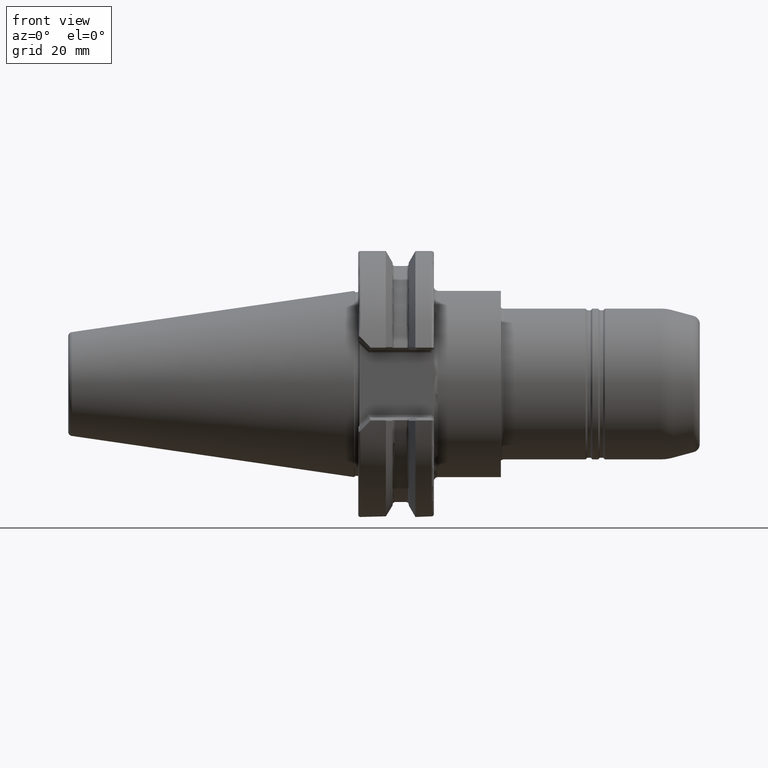
[diagram: clean part render]
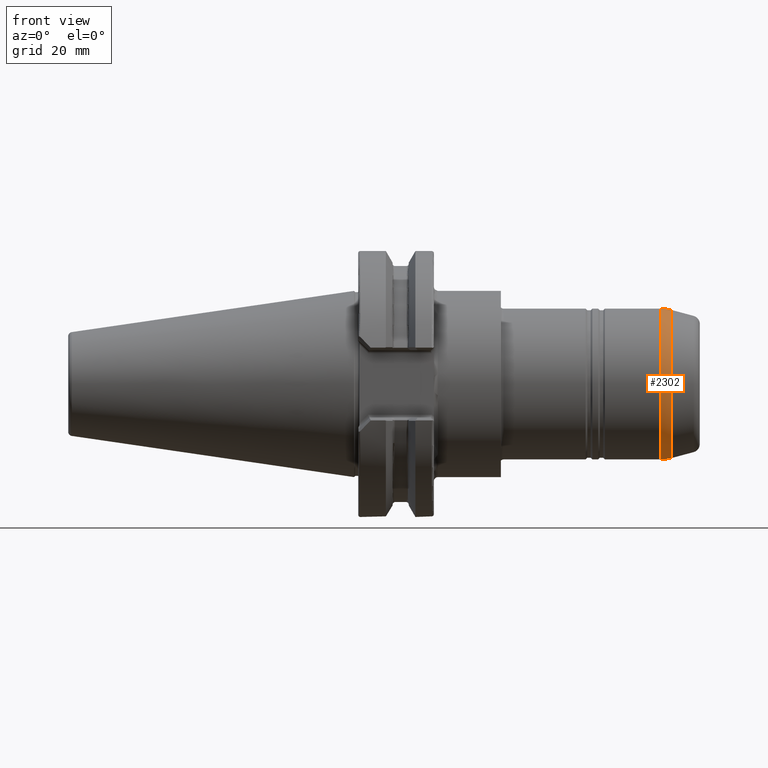
[diagram: same view with one face highlighted and labeled with its STEP entity id]
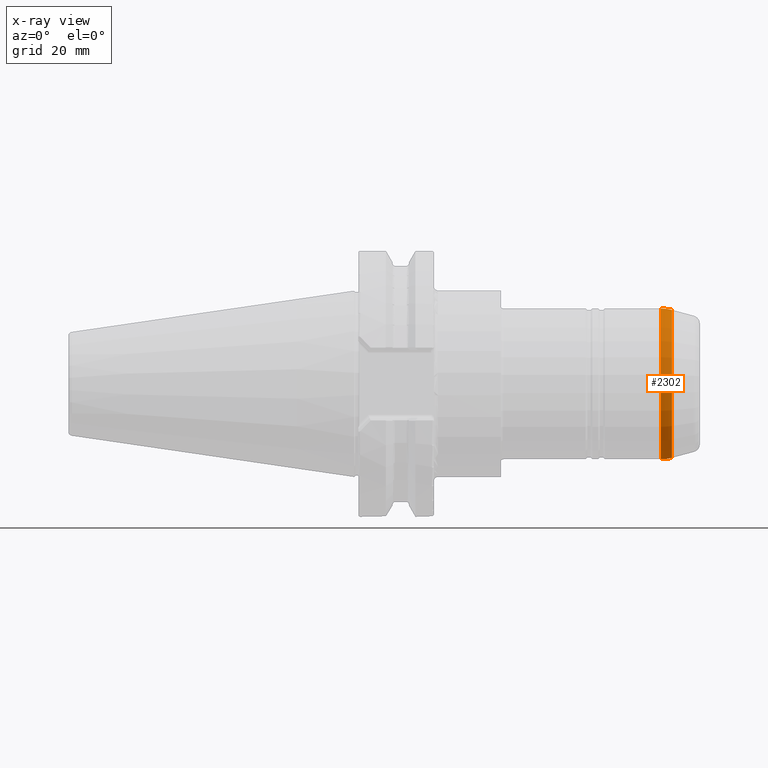
[diagram: x-ray of the same camera — body ghosted, the highlighted face saturated]
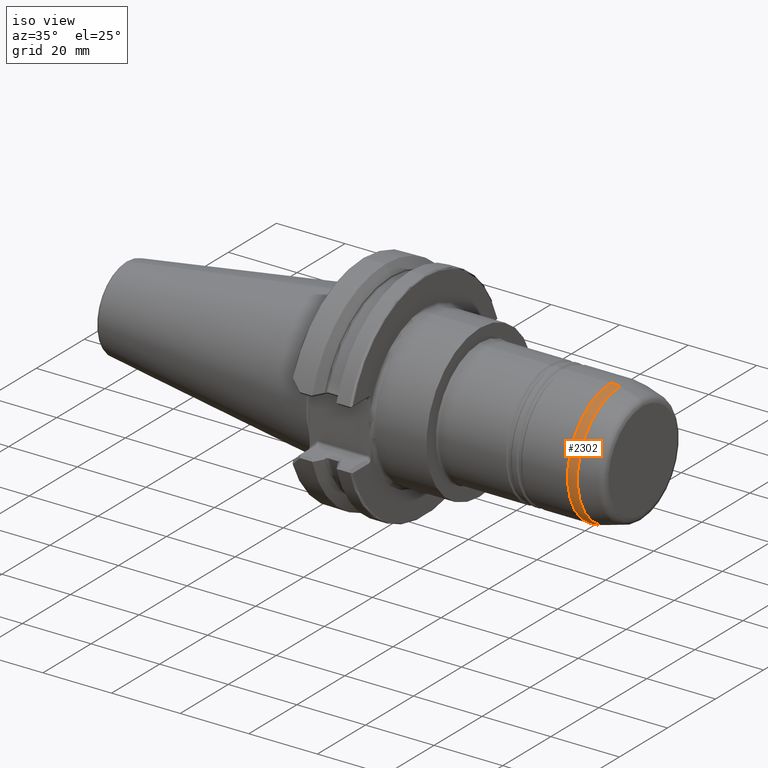
[diagram: same view with one face highlighted and labeled with its STEP entity id]
A machine part, front view. The second image highlights one B-rep face of the part: STEP entity #2302.
The next image is the same camera in x-ray: the body ghosted, the highlighted face saturated — about 0% of this face is hidden behind the body in this view.
A second angle (iso view) of the same face is appended — the face is thin or edge-on in the first view.
In plain terms, the highlighted toroidal blend (fillet) surface has major radius 8 mm and minor (blend) radius 10 mm.
Its self-contained STEP definition (entity closure, byte-faithful):
#95 = DIRECTION ( 'NONE',  ( 0.0000000000000000000, -1.000000000000000000, 0.0000000000000000000 ) ) ;
#156 = CIRCLE ( 'NONE', #777, 9.999999999999998200 ) ;
#386 = FACE_OUTER_BOUND ( 'NONE', #3738, .T. ) ;
#404 = CARTESIAN_POINT ( 'NONE',  ( 141.5334750199998300, 0.0000000000000000000, 18.00000000000001400 ) ) ;
#472 = CARTESIAN_POINT ( 'NONE',  ( 141.5334750199998300, 0.0000000000000000000, 0.0000000000000000000 ) ) ;
#500 = CARTESIAN_POINT ( 'NONE',  ( 144.1216654710250400, 0.0000000000000000000, 17.65925826289069200 ) ) ;
#739 = DIRECTION ( 'NONE',  ( -0.0000000000000000000, 1.000000000000000000, 1.224646799147353200E-016 ) ) ;
#777 = AXIS2_PLACEMENT_3D ( 'NONE', #2458, #95, #2855 ) ;
#871 = DIRECTION ( 'NONE',  ( 0.0000000000000000000, 0.0000000000000000000, 1.000000000000000000 ) ) ;
#1398 = AXIS2_PLACEMENT_3D ( 'NONE', #2281, #5016, #2683 ) ;
#1437 = TOROIDAL_SURFACE ( 'NONE', #4174, 8.000000000000014200, 9.999999999999998200 ) ;
#1490 = CARTESIAN_POINT ( 'NONE',  ( 141.5334750199998300, 0.0000000000000000000, 0.0000000000000000000 ) ) ;
#1632 = VERTEX_POINT ( 'NONE', #2520 ) ;
#1669 = AXIS2_PLACEMENT_3D ( 'NONE', #3099, #739, #3478 ) ;
#1825 = CIRCLE ( 'NONE', #1669, 9.999999999999998200 ) ;
#2000 = VERTEX_POINT ( 'NONE', #500 ) ;
#2281 = CARTESIAN_POINT ( 'NONE',  ( 144.1216654710250400, 0.0000000000000000000, 0.0000000000000000000 ) ) ;
#2302 = ADVANCED_FACE ( 'NONE', ( #386 ), #1437, .T. ) ;
#2458 = CARTESIAN_POINT ( 'NONE',  ( 141.5334750199998300, 0.0000000000000000000, 8.000000000000014200 ) ) ;
#2520 = CARTESIAN_POINT ( 'NONE',  ( 141.5334750199998300, 2.204364238465237000E-015, -18.00000000000001400 ) ) ;
#2683 = DIRECTION ( 'NONE',  ( 0.0000000000000000000, 0.0000000000000000000, 1.000000000000000000 ) ) ;
#2855 = DIRECTION ( 'NONE',  ( 0.0000000000000000000, 0.0000000000000000000, -1.000000000000000000 ) ) ;
#2946 = ORIENTED_EDGE ( 'NONE', *, *, #4727, .T. ) ;
#3099 = CARTESIAN_POINT ( 'NONE',  ( 141.5334750199998300, 9.797174393178843400E-016, -8.000000000000014200 ) ) ;
#3228 = DIRECTION ( 'NONE',  ( -1.000000000000000000, -0.0000000000000000000, -0.0000000000000000000 ) ) ;
#3251 = ORIENTED_EDGE ( 'NONE', *, *, #4908, .T. ) ;
#3447 = DIRECTION ( 'NONE',  ( -1.000000000000000000, -0.0000000000000000000, -0.0000000000000000000 ) ) ;
#3478 = DIRECTION ( 'NONE',  ( 0.0000000000000000000, -1.224646799147353200E-016, 1.000000000000000000 ) ) ;
#3540 = CIRCLE ( 'NONE', #4280, 18.00000000000001400 ) ;
#3643 = VERTEX_POINT ( 'NONE', #404 ) ;
#3738 = EDGE_LOOP ( 'NONE', ( #4388, #2946, #3251, #4394 ) ) ;
#3906 = CIRCLE ( 'NONE', #1398, 17.65925826289069200 ) ;
#4174 = AXIS2_PLACEMENT_3D ( 'NONE', #1490, #3447, #4609 ) ;
#4280 = AXIS2_PLACEMENT_3D ( 'NONE', #472, #3228, #871 ) ;
#4388 = ORIENTED_EDGE ( 'NONE', *, *, #4751, .F. ) ;
#4394 = ORIENTED_EDGE ( 'NONE', *, *, #4894, .F. ) ;
#4609 = DIRECTION ( 'NONE',  ( 0.0000000000000000000, 0.0000000000000000000, 1.000000000000000000 ) ) ;
#4636 = CARTESIAN_POINT ( 'NONE',  ( 144.1216654710250400, 2.162635410696553500E-015, -17.65925826289069200 ) ) ;
#4727 = EDGE_CURVE ( 'NONE', #4757, #2000, #3906, .T. ) ;
#4751 = EDGE_CURVE ( 'NONE', #4757, #1632, #1825, .T. ) ;
#4757 = VERTEX_POINT ( 'NONE', #4636 ) ;
#4894 = EDGE_CURVE ( 'NONE', #1632, #3643, #3540, .T. ) ;
#4908 = EDGE_CURVE ( 'NONE', #2000, #3643, #156, .T. ) ;
#5016 = DIRECTION ( 'NONE',  ( -1.000000000000000000, -0.0000000000000000000, -0.0000000000000000000 ) ) ;